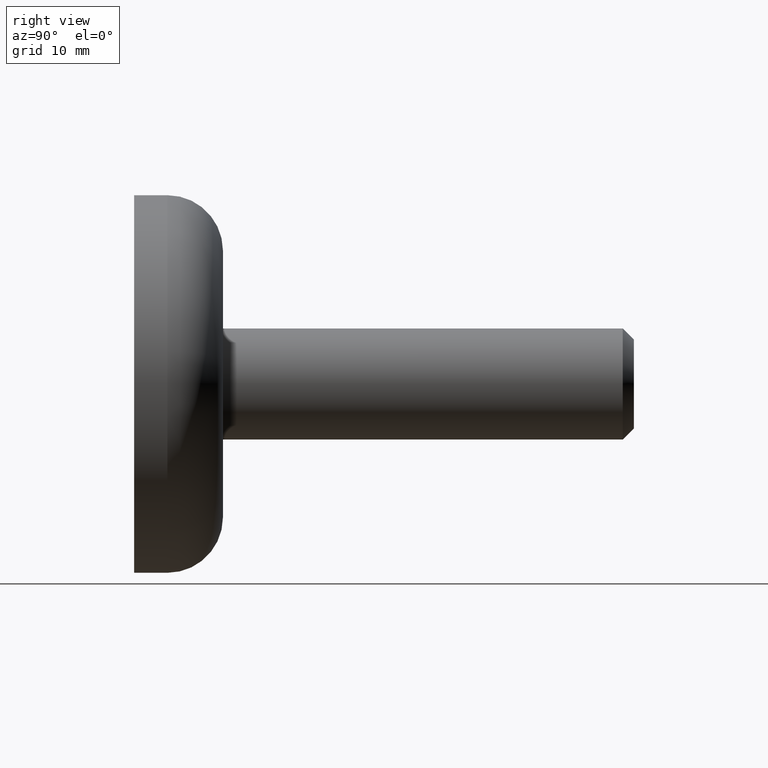
[diagram: clean part render]
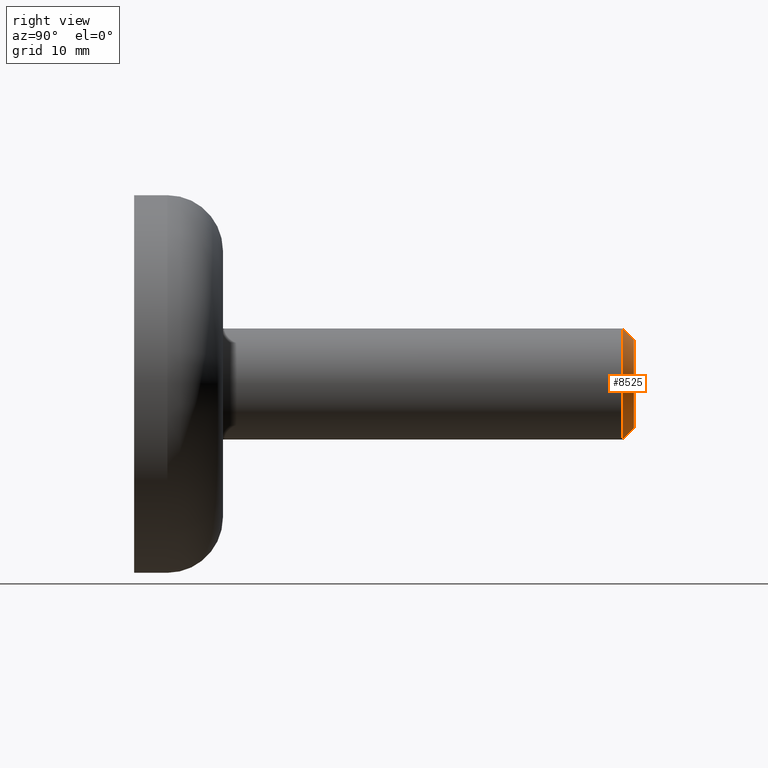
[diagram: same view with one face highlighted and labeled with its STEP entity id]
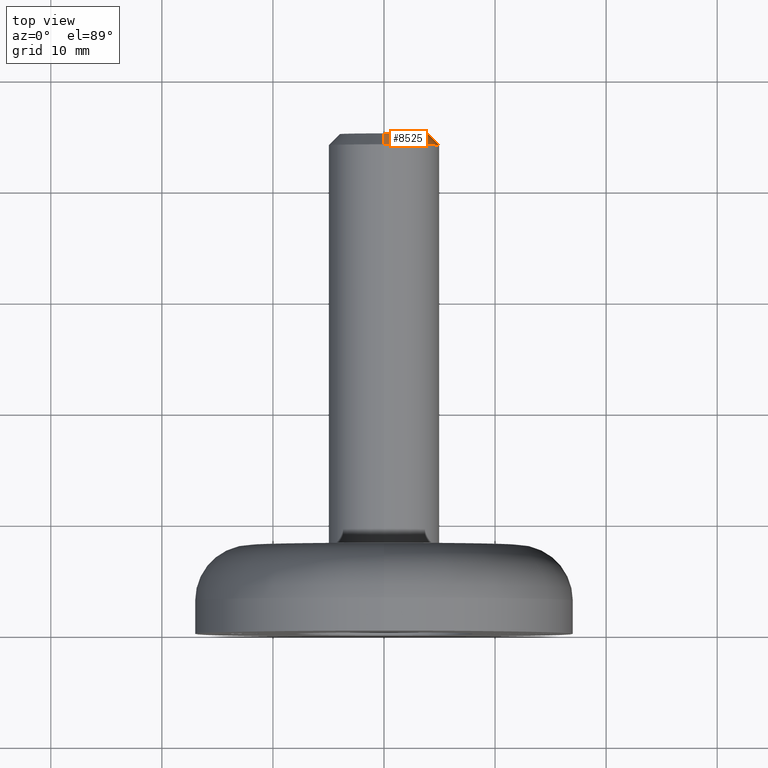
[diagram: same view with one face highlighted and labeled with its STEP entity id]
A machine part, right view. The second image highlights one B-rep face of the part: STEP entity #8525.
A second angle (top view) of the same face is appended — the face is thin or edge-on in the first view.
In plain terms, the highlighted conical surface has half-angle 45 deg.
Its self-contained STEP definition (entity closure, byte-faithful):
#233 = CARTESIAN_POINT ( 'NONE',  ( 5.510910596163086597E-16, 45.00000000000000000, 3.999999999999993339 ) ) ;
#625 = DIRECTION ( 'NONE',  ( 0.000000000000000000, 0.000000000000000000, -1.000000000000000000 ) ) ;
#1358 = ORIENTED_EDGE ( 'NONE', *, *, #4306, .F. ) ;
#1567 = EDGE_CURVE ( 'NONE', #6103, #9615, #3075, .T. ) ;
#2017 = CONICAL_SURFACE ( 'NONE', #2431, 5.000000000000001776, 0.7853981633974522758 ) ;
#2431 = AXIS2_PLACEMENT_3D ( 'NONE', #6237, #12089, #625 ) ;
#2500 = DIRECTION ( 'NONE',  ( 0.000000000000000000, -0.7071067811865446862, -0.7071067811865503483 ) ) ;
#3045 = VECTOR ( 'NONE', #2500, 1000.000000000000114 ) ;
#3075 = LINE ( 'NONE', #6323, #5814 ) ;
#3651 = CARTESIAN_POINT ( 'NONE',  ( 6.123233995736768255E-16, 44.00000000000000000, 5.000000000000001776 ) ) ;
#3812 = AXIS2_PLACEMENT_3D ( 'NONE', #11976, #11014, #6222 ) ;
#4168 = FACE_OUTER_BOUND ( 'NONE', #5710, .T. ) ;
#4306 = EDGE_CURVE ( 'NONE', #5492, #9615, #8504, .T. ) ;
#4791 = CARTESIAN_POINT ( 'NONE',  ( 0.000000000000000000, 44.00000000000000000, -5.000000000000001776 ) ) ;
#4837 = VERTEX_POINT ( 'NONE', #12808 ) ;
#4864 = CIRCLE ( 'NONE', #14813, 3.999999999999993339 ) ;
#5309 = EDGE_CURVE ( 'NONE', #4837, #5492, #9178, .T. ) ;
#5492 = VERTEX_POINT ( 'NONE', #8655 ) ;
#5710 = EDGE_LOOP ( 'NONE', ( #11514, #12088, #1358, #11114 ) ) ;
#5814 = VECTOR ( 'NONE', #11022, 1000.000000000000114 ) ;
#5854 = EDGE_CURVE ( 'NONE', #6103, #4837, #4864, .T. ) ;
#6103 = VERTEX_POINT ( 'NONE', #233 ) ;
#6222 = DIRECTION ( 'NONE',  ( 0.000000000000000000, 0.000000000000000000, 1.000000000000000000 ) ) ;
#6237 = CARTESIAN_POINT ( 'NONE',  ( 0.000000000000000000, 44.00000000000000000, 0.000000000000000000 ) ) ;
#6323 = CARTESIAN_POINT ( 'NONE',  ( 6.123233995736768255E-16, 44.00000000000000000, 5.000000000000001776 ) ) ;
#8332 = DIRECTION ( 'NONE',  ( 0.000000000000000000, 0.000000000000000000, 1.000000000000000000 ) ) ;
#8504 = CIRCLE ( 'NONE', #3812, 5.000000000000001776 ) ;
#8525 = ADVANCED_FACE ( 'NONE', ( #4168 ), #2017, .T. ) ;
#8655 = CARTESIAN_POINT ( 'NONE',  ( 0.000000000000000000, 44.00000000000000000, -5.000000000000001776 ) ) ;
#9178 = LINE ( 'NONE', #4791, #3045 ) ;
#9615 = VERTEX_POINT ( 'NONE', #3651 ) ;
#11014 = DIRECTION ( 'NONE',  ( -0.000000000000000000, -1.000000000000000000, -0.000000000000000000 ) ) ;
#11022 = DIRECTION ( 'NONE',  ( 8.659560562354966138E-17, -0.7071067811865446862, 0.7071067811865503483 ) ) ;
#11114 = ORIENTED_EDGE ( 'NONE', *, *, #5309, .F. ) ;
#11514 = ORIENTED_EDGE ( 'NONE', *, *, #5854, .F. ) ;
#11775 = CARTESIAN_POINT ( 'NONE',  ( 0.000000000000000000, 45.00000000000000000, 0.000000000000000000 ) ) ;
#11976 = CARTESIAN_POINT ( 'NONE',  ( 0.000000000000000000, 44.00000000000000000, 0.000000000000000000 ) ) ;
#12088 = ORIENTED_EDGE ( 'NONE', *, *, #1567, .T. ) ;
#12089 = DIRECTION ( 'NONE',  ( -0.000000000000000000, -1.000000000000000000, -0.000000000000000000 ) ) ;
#12808 = CARTESIAN_POINT ( 'NONE',  ( 0.000000000000000000, 45.00000000000000000, -3.999999999999993339 ) ) ;
#14147 = DIRECTION ( 'NONE',  ( 0.000000000000000000, 1.000000000000000000, 0.000000000000000000 ) ) ;
#14813 = AXIS2_PLACEMENT_3D ( 'NONE', #11775, #14147, #8332 ) ;